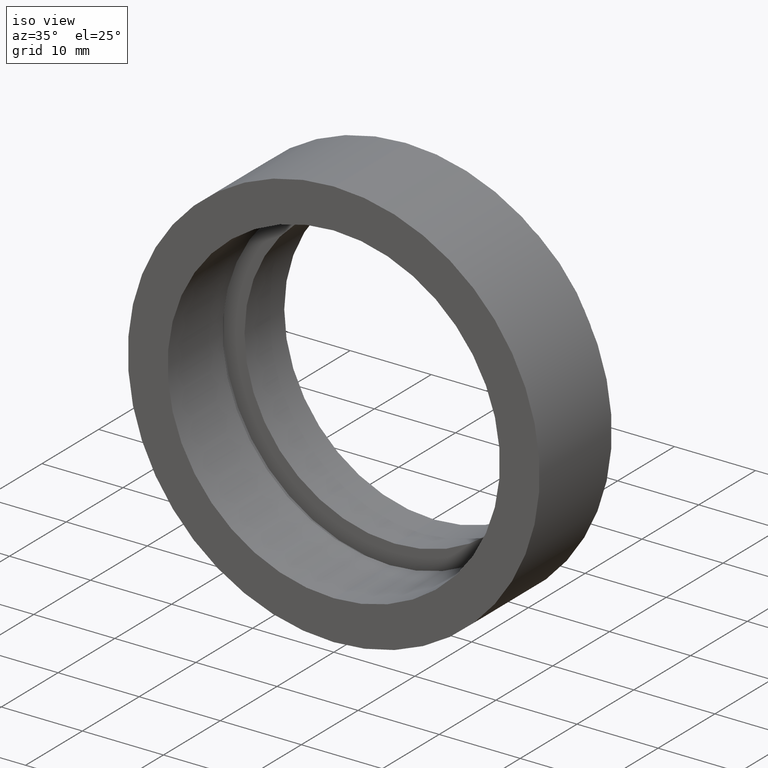
[diagram: clean part render]
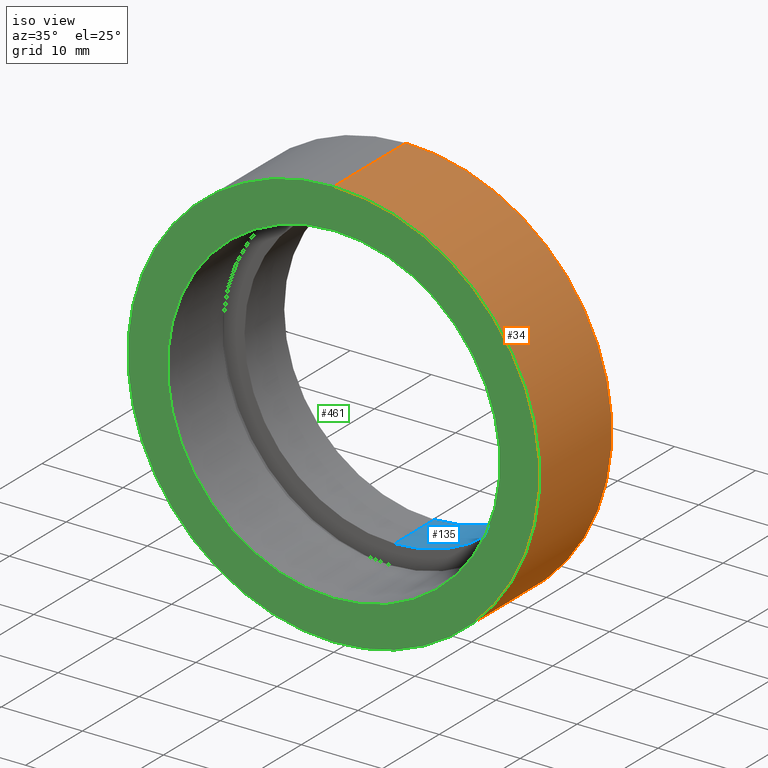
[diagram: same view with three faces highlighted in distinct colors, each labeled with its STEP entity id]
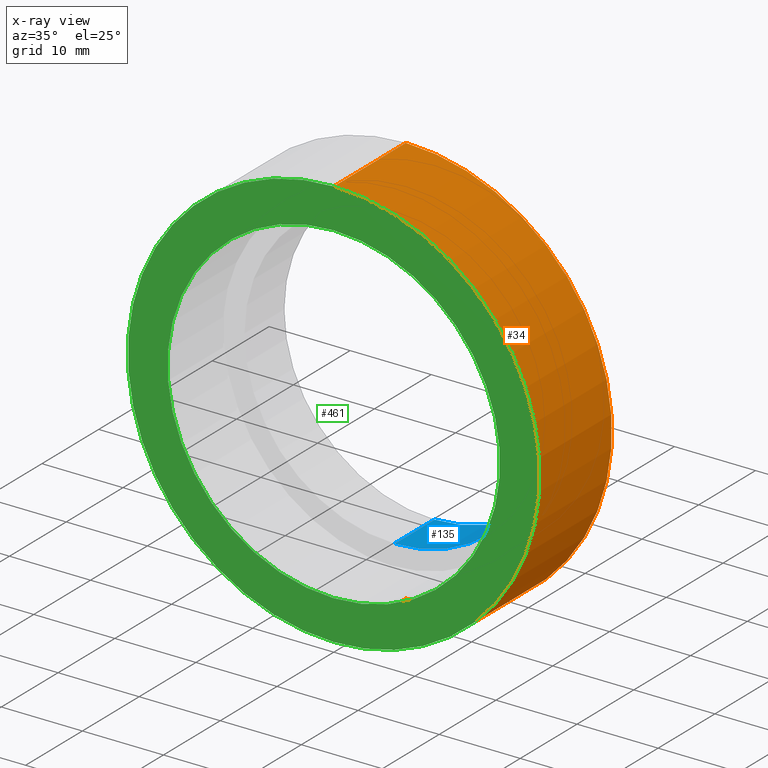
[diagram: x-ray of the same camera — body ghosted, the three highlighted faces saturated]
A machine part, iso view with three faces highlighted in distinct colors.
The next image is the same camera in x-ray (body ghosted, the three faces saturated) — at least one of them is partly hidden behind the body in this view.
Their STEP definitions:

[orange] entity #34 — the highlighted cylindrical surface (partial cylindrical patch) has radius 25.4 mm, axis along (-0, 1, -0).
#6 = ORIENTED_EDGE ( 'NONE', *, *, #236, .T. ) ;
#15 = ORIENTED_EDGE ( 'NONE', *, *, #182, .F. ) ;
#34 = ADVANCED_FACE ( 'NONE', ( #150 ), #596, .T. ) ;
#57 = CARTESIAN_POINT ( 'NONE',  ( 3.110602869834279600E-015, -2.775557561562891400E-014, -25.40000000000002000 ) ) ;
#58 = VERTEX_POINT ( 'NONE', #358 ) ;
#83 = DIRECTION ( 'NONE',  ( -0.0000000000000000000, 1.000000000000000000, -0.0000000000000000000 ) ) ;
#88 = CARTESIAN_POINT ( 'NONE',  ( 0.0000000000000000000, 12.69999999999998900, 0.0000000000000000000 ) ) ;
#125 = VECTOR ( 'NONE', #390, 1000.000000000000000 ) ;
#129 = ORIENTED_EDGE ( 'NONE', *, *, #451, .F. ) ;
#130 = EDGE_CURVE ( 'NONE', #257, #325, #137, .T. ) ;
#132 = CARTESIAN_POINT ( 'NONE',  ( 3.110602869834279600E-015, 161.3761669434274500, -25.40000000000002000 ) ) ;
#136 = LINE ( 'NONE', #132, #125 ) ;
#137 = CIRCLE ( 'NONE', #462, 25.40000000000002000 ) ;
#150 = FACE_OUTER_BOUND ( 'NONE', #499, .T. ) ;
#165 = ORIENTED_EDGE ( 'NONE', *, *, #130, .T. ) ;
#169 = CARTESIAN_POINT ( 'NONE',  ( 0.0000000000000000000, 12.69999999999998900, 25.40000000000001600 ) ) ;
#182 = EDGE_CURVE ( 'NONE', #257, #210, #415, .T. ) ;
#210 = VERTEX_POINT ( 'NONE', #169 ) ;
#236 = EDGE_CURVE ( 'NONE', #325, #58, #136, .T. ) ;
#257 = VERTEX_POINT ( 'NONE', #479 ) ;
#271 = DIRECTION ( 'NONE',  ( 0.0000000000000000000, 0.0000000000000000000, 1.000000000000000000 ) ) ;
#298 = AXIS2_PLACEMENT_3D ( 'NONE', #88, #374, #271 ) ;
#303 = AXIS2_PLACEMENT_3D ( 'NONE', #502, #361, #307 ) ;
#307 = DIRECTION ( 'NONE',  ( 0.0000000000000000000, 0.0000000000000000000, 1.000000000000000000 ) ) ;
#310 = DIRECTION ( 'NONE',  ( 0.0000000000000000000, 0.0000000000000000000, 1.000000000000000000 ) ) ;
#325 = VERTEX_POINT ( 'NONE', #57 ) ;
#358 = CARTESIAN_POINT ( 'NONE',  ( 3.110602869834279200E-015, 12.69999999999998900, -25.40000000000001600 ) ) ;
#361 = DIRECTION ( 'NONE',  ( -0.0000000000000000000, 1.000000000000000000, -0.0000000000000000000 ) ) ;
#374 = DIRECTION ( 'NONE',  ( -0.0000000000000000000, 1.000000000000000000, -0.0000000000000000000 ) ) ;
#376 = DIRECTION ( 'NONE',  ( -0.0000000000000000000, 1.000000000000000000, -0.0000000000000000000 ) ) ;
#390 = DIRECTION ( 'NONE',  ( -0.0000000000000000000, 1.000000000000000000, -0.0000000000000000000 ) ) ;
#415 = LINE ( 'NONE', #422, #494 ) ;
#422 = CARTESIAN_POINT ( 'NONE',  ( 0.0000000000000000000, 161.3761669434274500, 25.40000000000002000 ) ) ;
#451 = EDGE_CURVE ( 'NONE', #210, #58, #553, .T. ) ;
#462 = AXIS2_PLACEMENT_3D ( 'NONE', #509, #376, #310 ) ;
#479 = CARTESIAN_POINT ( 'NONE',  ( 0.0000000000000000000, -2.775557561562891400E-014, 25.40000000000002000 ) ) ;
#494 = VECTOR ( 'NONE', #83, 1000.000000000000000 ) ;
#499 = EDGE_LOOP ( 'NONE', ( #165, #6, #129, #15 ) ) ;
#502 = CARTESIAN_POINT ( 'NONE',  ( 0.0000000000000000000, 161.3761669434274500, 0.0000000000000000000 ) ) ;
#509 = CARTESIAN_POINT ( 'NONE',  ( 0.0000000000000000000, -2.775557561562891400E-014, 0.0000000000000000000 ) ) ;
#553 = CIRCLE ( 'NONE', #298, 25.40000000000001600 ) ;
#596 = CYLINDRICAL_SURFACE ( 'NONE', #303, 25.40000000000002000 ) ;

[blue] entity #135 — the highlighted cylindrical surface (partial cylindrical patch) has radius 18.5 mm, axis along (-0, 1, -0).
#3 = CARTESIAN_POINT ( 'NONE',  ( 0.0000000000000000000, 17.69999999999999200, 18.50000000000001800 ) ) ;
#9 = VECTOR ( 'NONE', #102, 1000.000000000000000 ) ;
#20 = CARTESIAN_POINT ( 'NONE',  ( 0.0000000000000000000, 161.3761669434274500, 18.50000000000001800 ) ) ;
#22 = LINE ( 'NONE', #20, #370 ) ;
#40 = EDGE_LOOP ( 'NONE', ( #42, #458, #345, #199 ) ) ;
#42 = ORIENTED_EDGE ( 'NONE', *, *, #391, .F. ) ;
#81 = LINE ( 'NONE', #149, #9 ) ;
#89 = EDGE_CURVE ( 'NONE', #196, #590, #22, .T. ) ;
#96 = AXIS2_PLACEMENT_3D ( 'NONE', #428, #521, #525 ) ;
#102 = DIRECTION ( 'NONE',  ( -0.0000000000000000000, 1.000000000000000000, -0.0000000000000000000 ) ) ;
#104 = VERTEX_POINT ( 'NONE', #558 ) ;
#119 = DIRECTION ( 'NONE',  ( -0.0000000000000000000, 1.000000000000000000, -0.0000000000000000000 ) ) ;
#127 = DIRECTION ( 'NONE',  ( -0.0000000000000000000, 1.000000000000000000, -0.0000000000000000000 ) ) ;
#135 = ADVANCED_FACE ( 'NONE', ( #392 ), #168, .F. ) ;
#149 = CARTESIAN_POINT ( 'NONE',  ( 2.265596578422605400E-015, 161.3761669434274500, -18.50000000000001800 ) ) ;
#168 = CYLINDRICAL_SURFACE ( 'NONE', #366, 18.50000000000001800 ) ;
#196 = VERTEX_POINT ( 'NONE', #511 ) ;
#199 = ORIENTED_EDGE ( 'NONE', *, *, #501, .T. ) ;
#225 = CARTESIAN_POINT ( 'NONE',  ( 2.265596578422605400E-015, 17.69999999999999200, -18.50000000000001800 ) ) ;
#241 = VERTEX_POINT ( 'NONE', #225 ) ;
#248 = EDGE_CURVE ( 'NONE', #196, #104, #347, .T. ) ;
#249 = AXIS2_PLACEMENT_3D ( 'NONE', #561, #262, #381 ) ;
#262 = DIRECTION ( 'NONE',  ( -0.0000000000000000000, 1.000000000000000000, -0.0000000000000000000 ) ) ;
#324 = DIRECTION ( 'NONE',  ( 0.0000000000000000000, 0.0000000000000000000, 1.000000000000000000 ) ) ;
#345 = ORIENTED_EDGE ( 'NONE', *, *, #89, .T. ) ;
#347 = CIRCLE ( 'NONE', #96, 18.50000000000001800 ) ;
#366 = AXIS2_PLACEMENT_3D ( 'NONE', #427, #127, #324 ) ;
#370 = VECTOR ( 'NONE', #119, 1000.000000000000000 ) ;
#381 = DIRECTION ( 'NONE',  ( 0.0000000000000000000, 0.0000000000000000000, 1.000000000000000000 ) ) ;
#391 = EDGE_CURVE ( 'NONE', #104, #241, #81, .T. ) ;
#392 = FACE_OUTER_BOUND ( 'NONE', #40, .T. ) ;
#427 = CARTESIAN_POINT ( 'NONE',  ( 0.0000000000000000000, 161.3761669434274500, 0.0000000000000000000 ) ) ;
#428 = CARTESIAN_POINT ( 'NONE',  ( 0.0000000000000000000, 10.69999999999998700, 0.0000000000000000000 ) ) ;
#458 = ORIENTED_EDGE ( 'NONE', *, *, #248, .F. ) ;
#501 = EDGE_CURVE ( 'NONE', #590, #241, #519, .T. ) ;
#511 = CARTESIAN_POINT ( 'NONE',  ( 0.0000000000000000000, 10.69999999999998700, 18.50000000000001800 ) ) ;
#519 = CIRCLE ( 'NONE', #249, 18.50000000000001800 ) ;
#521 = DIRECTION ( 'NONE',  ( -0.0000000000000000000, 1.000000000000000000, -0.0000000000000000000 ) ) ;
#525 = DIRECTION ( 'NONE',  ( 0.0000000000000000000, 0.0000000000000000000, 1.000000000000000000 ) ) ;
#558 = CARTESIAN_POINT ( 'NONE',  ( 2.265596578422605400E-015, 10.69999999999998700, -18.50000000000001800 ) ) ;
#561 = CARTESIAN_POINT ( 'NONE',  ( 0.0000000000000000000, 17.69999999999999200, 0.0000000000000000000 ) ) ;
#590 = VERTEX_POINT ( 'NONE', #3 ) ;

[green] entity #461 — the highlighted planar face has unit normal (-0, 1, 0).
#5 = DIRECTION ( 'NONE',  ( 0.0000000000000000000, 0.0000000000000000000, 1.000000000000000000 ) ) ;
#7 = DIRECTION ( 'NONE',  ( -0.0000000000000000000, 1.000000000000000000, -0.0000000000000000000 ) ) ;
#12 = EDGE_CURVE ( 'NONE', #325, #257, #480, .T. ) ;
#23 = ORIENTED_EDGE ( 'NONE', *, *, #481, .T. ) ;
#28 = CARTESIAN_POINT ( 'NONE',  ( 2.510525938252076500E-015, -2.775557561562891400E-014, -20.50000000000002100 ) ) ;
#33 = CARTESIAN_POINT ( 'NONE',  ( 0.0000000000000000000, -2.775557561562891400E-014, 0.0000000000000000000 ) ) ;
#35 = DIRECTION ( 'NONE',  ( -0.0000000000000000000, 1.000000000000000000, -0.0000000000000000000 ) ) ;
#57 = CARTESIAN_POINT ( 'NONE',  ( 3.110602869834279600E-015, -2.775557561562891400E-014, -25.40000000000002000 ) ) ;
#72 = CARTESIAN_POINT ( 'NONE',  ( 0.0000000000000000000, -2.775557561562891400E-014, 0.0000000000000000000 ) ) ;
#76 = AXIS2_PLACEMENT_3D ( 'NONE', #72, #114, #208 ) ;
#78 = AXIS2_PLACEMENT_3D ( 'NONE', #469, #464, #171 ) ;
#113 = VERTEX_POINT ( 'NONE', #28 ) ;
#114 = DIRECTION ( 'NONE',  ( -0.0000000000000000000, 1.000000000000000000, -0.0000000000000000000 ) ) ;
#115 = AXIS2_PLACEMENT_3D ( 'NONE', #290, #7, #5 ) ;
#130 = EDGE_CURVE ( 'NONE', #257, #325, #137, .T. ) ;
#134 = PLANE ( 'NONE',  #78 ) ;
#137 = CIRCLE ( 'NONE', #462, 25.40000000000002000 ) ;
#153 = CIRCLE ( 'NONE', #238, 20.50000000000002100 ) ;
#171 = DIRECTION ( 'NONE',  ( 0.0000000000000000000, 0.0000000000000000000, 1.000000000000000000 ) ) ;
#177 = DIRECTION ( 'NONE',  ( 0.0000000000000000000, 0.0000000000000000000, 1.000000000000000000 ) ) ;
#208 = DIRECTION ( 'NONE',  ( 0.0000000000000000000, 0.0000000000000000000, 1.000000000000000000 ) ) ;
#238 = AXIS2_PLACEMENT_3D ( 'NONE', #33, #35, #177 ) ;
#247 = EDGE_LOOP ( 'NONE', ( #294, #550 ) ) ;
#251 = VERTEX_POINT ( 'NONE', #518 ) ;
#257 = VERTEX_POINT ( 'NONE', #479 ) ;
#269 = FACE_BOUND ( 'NONE', #348, .T. ) ;
#280 = CIRCLE ( 'NONE', #115, 20.50000000000002100 ) ;
#290 = CARTESIAN_POINT ( 'NONE',  ( 0.0000000000000000000, -2.775557561562891400E-014, 0.0000000000000000000 ) ) ;
#294 = ORIENTED_EDGE ( 'NONE', *, *, #130, .F. ) ;
#310 = DIRECTION ( 'NONE',  ( 0.0000000000000000000, 0.0000000000000000000, 1.000000000000000000 ) ) ;
#315 = EDGE_CURVE ( 'NONE', #251, #113, #280, .T. ) ;
#325 = VERTEX_POINT ( 'NONE', #57 ) ;
#348 = EDGE_LOOP ( 'NONE', ( #349, #23 ) ) ;
#349 = ORIENTED_EDGE ( 'NONE', *, *, #315, .T. ) ;
#376 = DIRECTION ( 'NONE',  ( -0.0000000000000000000, 1.000000000000000000, -0.0000000000000000000 ) ) ;
#461 = ADVANCED_FACE ( 'NONE', ( #593, #269 ), #134, .F. ) ;
#462 = AXIS2_PLACEMENT_3D ( 'NONE', #509, #376, #310 ) ;
#464 = DIRECTION ( 'NONE',  ( -0.0000000000000000000, 1.000000000000000000, 0.0000000000000000000 ) ) ;
#469 = CARTESIAN_POINT ( 'NONE',  ( 25.40000000000002000, -1.454715626710879400E-014, 0.0000000000000000000 ) ) ;
#479 = CARTESIAN_POINT ( 'NONE',  ( 0.0000000000000000000, -2.775557561562891400E-014, 25.40000000000002000 ) ) ;
#480 = CIRCLE ( 'NONE', #76, 25.40000000000002000 ) ;
#481 = EDGE_CURVE ( 'NONE', #113, #251, #153, .T. ) ;
#509 = CARTESIAN_POINT ( 'NONE',  ( 0.0000000000000000000, -2.775557561562891400E-014, 0.0000000000000000000 ) ) ;
#518 = CARTESIAN_POINT ( 'NONE',  ( 0.0000000000000000000, -2.775557561562891400E-014, 20.50000000000002100 ) ) ;
#550 = ORIENTED_EDGE ( 'NONE', *, *, #12, .F. ) ;
#593 = FACE_OUTER_BOUND ( 'NONE', #247, .T. ) ;